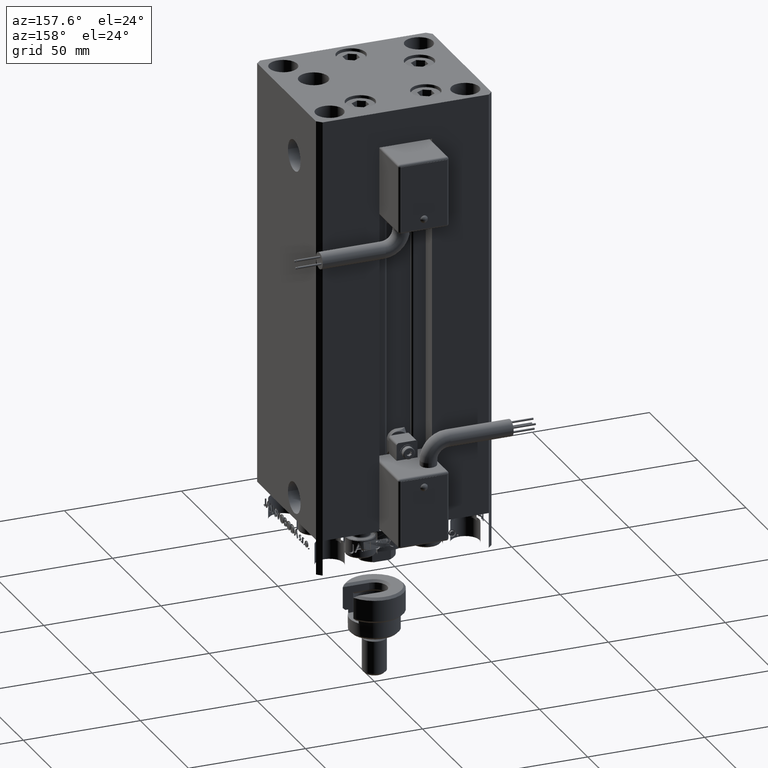
[diagram: clean part render]
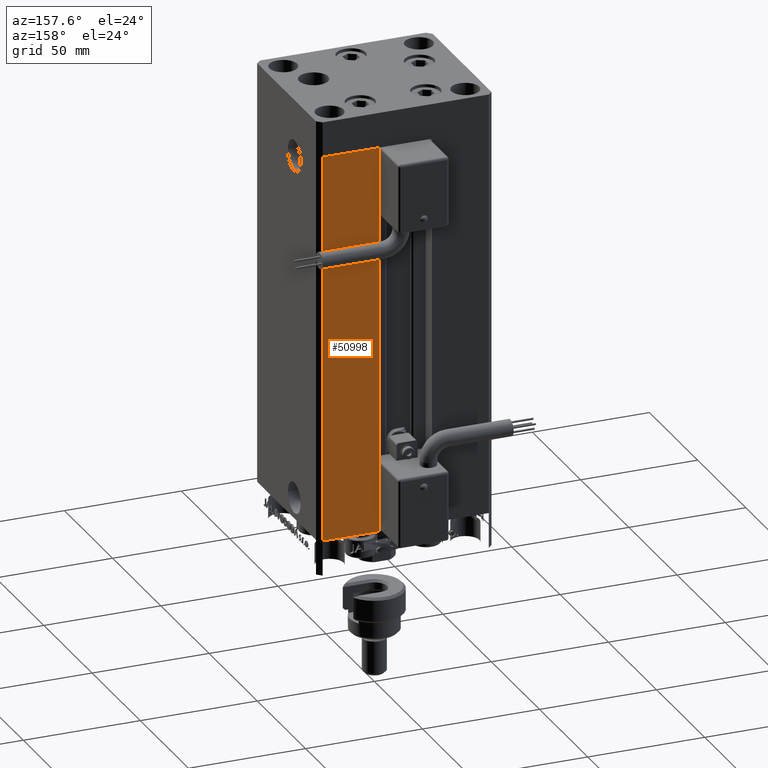
[diagram: same view with one face highlighted and labeled with its STEP entity id]
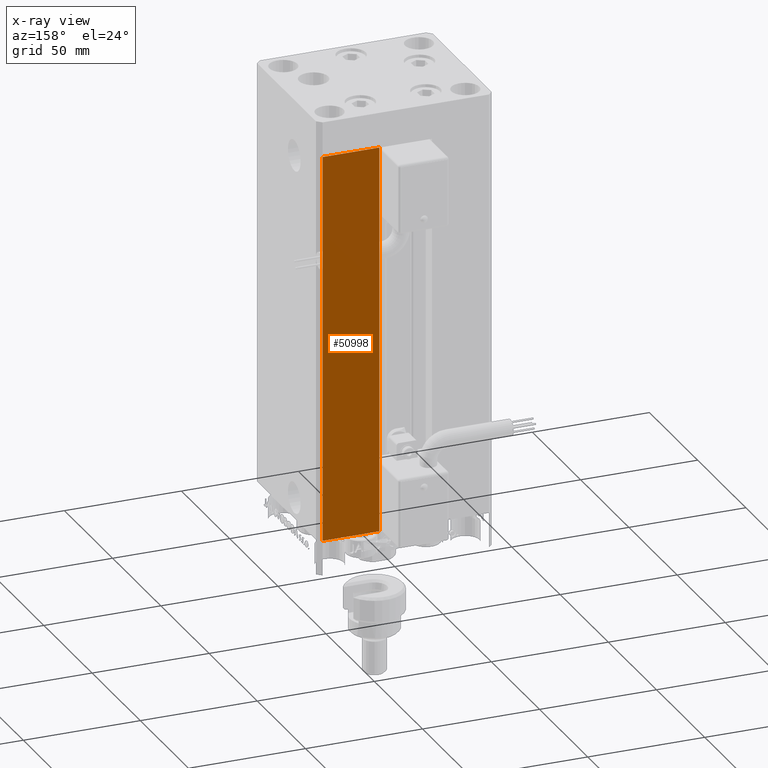
[diagram: x-ray of the same camera — body ghosted, the highlighted face saturated]
A machine part, auxiliary view. The second image highlights one B-rep face of the part: STEP entity #50998.
The next image is the same camera in x-ray: the body ghosted, the highlighted face saturated — about 0% of this face is hidden behind the body in this view.
In plain terms, the highlighted planar face has unit normal (0, -1, 0).
Its self-contained STEP definition (entity closure, byte-faithful):
#937 = CARTESIAN_POINT ( 'NONE',  ( 35.50000000000000000, 32.49999999999999289, 0.000000000000000000 ) ) ;
#1041 = CARTESIAN_POINT ( 'NONE',  ( 35.50000000000000000, 32.49999999999999289, 166.0000000000000000 ) ) ;
#3462 = AXIS2_PLACEMENT_3D ( 'NONE', #9886, #25583, #50749 ) ;
#3628 = CARTESIAN_POINT ( 'NONE',  ( 11.25000000000000178, 32.49999999999999289, 0.000000000000000000 ) ) ;
#4794 = CARTESIAN_POINT ( 'NONE',  ( 35.50000000000000000, 32.49999999999999289, 166.0000000000000000 ) ) ;
#5936 = EDGE_CURVE ( 'NONE', #34291, #29953, #7936, .T. ) ;
#6618 = DIRECTION ( 'NONE',  ( -1.000000000000000000, 0.000000000000000000, 0.000000000000000000 ) ) ;
#7936 = LINE ( 'NONE', #3628, #20307 ) ;
#8062 = VECTOR ( 'NONE', #13525, 1000.000000000000000 ) ;
#8316 = VECTOR ( 'NONE', #17502, 1000.000000000000000 ) ;
#8647 = EDGE_LOOP ( 'NONE', ( #12879, #18010, #34070, #37148 ) ) ;
#8831 = PLANE ( 'NONE',  #3462 ) ;
#9886 = CARTESIAN_POINT ( 'NONE',  ( -11.25000000000000178, 32.49999999999999289, 166.0000000000000000 ) ) ;
#12879 = ORIENTED_EDGE ( 'NONE', *, *, #27779, .T. ) ;
#13525 = DIRECTION ( 'NONE',  ( 1.000000000000000000, 0.000000000000000000, 0.000000000000000000 ) ) ;
#13787 = LINE ( 'NONE', #14048, #8062 ) ;
#14048 = CARTESIAN_POINT ( 'NONE',  ( -11.25000000000000178, 32.49999999999999289, 166.0000000000000000 ) ) ;
#15516 = CARTESIAN_POINT ( 'NONE',  ( 11.25000000000000178, 32.49999999999999289, 0.000000000000000000 ) ) ;
#17502 = DIRECTION ( 'NONE',  ( -0.000000000000000000, -0.000000000000000000, -1.000000000000000000 ) ) ;
#18010 = ORIENTED_EDGE ( 'NONE', *, *, #5936, .T. ) ;
#20307 = VECTOR ( 'NONE', #48769, 1000.000000000000000 ) ;
#23913 = EDGE_CURVE ( 'NONE', #29953, #51013, #13787, .T. ) ;
#25583 = DIRECTION ( 'NONE',  ( 0.000000000000000000, -1.000000000000000000, 0.000000000000000000 ) ) ;
#27160 = CARTESIAN_POINT ( 'NONE',  ( 11.24999999999999467, 32.49999999999999289, 166.0000000000000000 ) ) ;
#27779 = EDGE_CURVE ( 'NONE', #50491, #34291, #48517, .T. ) ;
#29953 = VERTEX_POINT ( 'NONE', #27160 ) ;
#30164 = FACE_OUTER_BOUND ( 'NONE', #8647, .T. ) ;
#31387 = VECTOR ( 'NONE', #6618, 1000.000000000000000 ) ;
#34070 = ORIENTED_EDGE ( 'NONE', *, *, #23913, .T. ) ;
#34291 = VERTEX_POINT ( 'NONE', #15516 ) ;
#37148 = ORIENTED_EDGE ( 'NONE', *, *, #42123, .T. ) ;
#42123 = EDGE_CURVE ( 'NONE', #51013, #50491, #46175, .T. ) ;
#43641 = CARTESIAN_POINT ( 'NONE',  ( -11.25000000000000178, 32.49999999999999289, 0.000000000000000000 ) ) ;
#46175 = LINE ( 'NONE', #1041, #8316 ) ;
#48517 = LINE ( 'NONE', #43641, #31387 ) ;
#48769 = DIRECTION ( 'NONE',  ( -0.000000000000000000, -0.000000000000000000, 1.000000000000000000 ) ) ;
#50491 = VERTEX_POINT ( 'NONE', #937 ) ;
#50749 = DIRECTION ( 'NONE',  ( 0.000000000000000000, -0.000000000000000000, -1.000000000000000000 ) ) ;
#50998 = ADVANCED_FACE ( 'NONE', ( #30164 ), #8831, .F. ) ;
#51013 = VERTEX_POINT ( 'NONE', #4794 ) ;